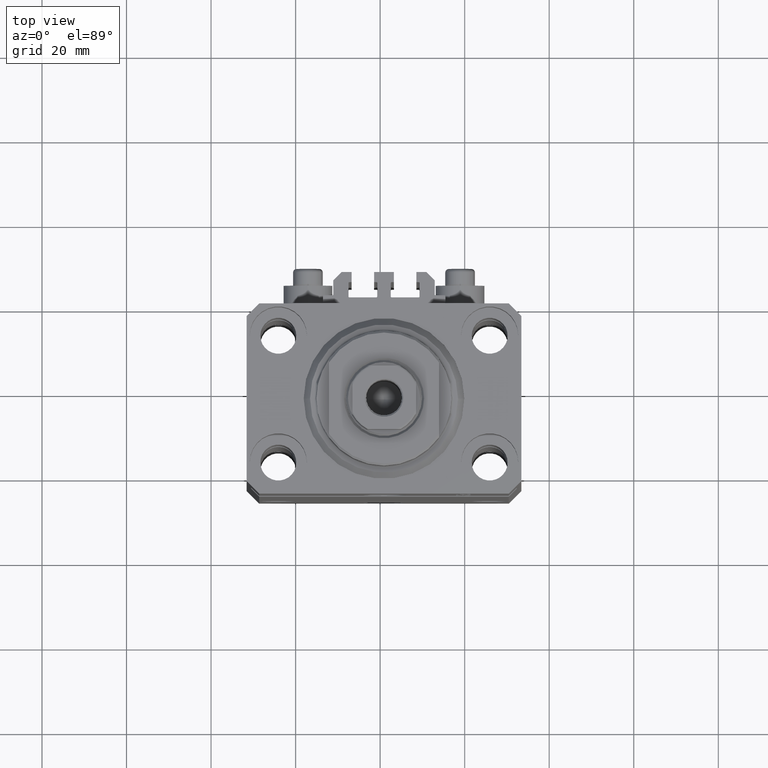
[diagram: clean part render]
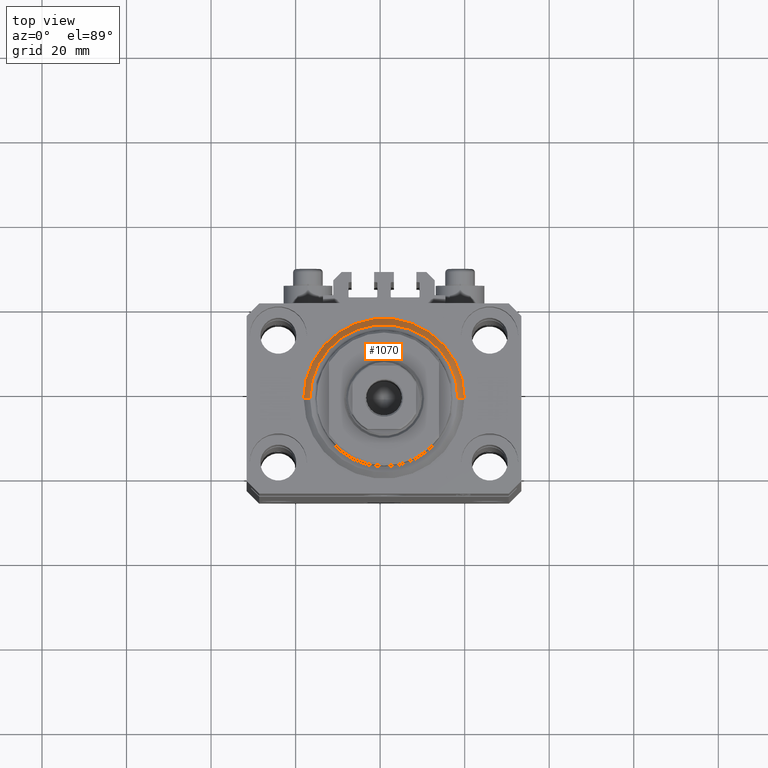
[diagram: same view with one face highlighted and labeled with its STEP entity id]
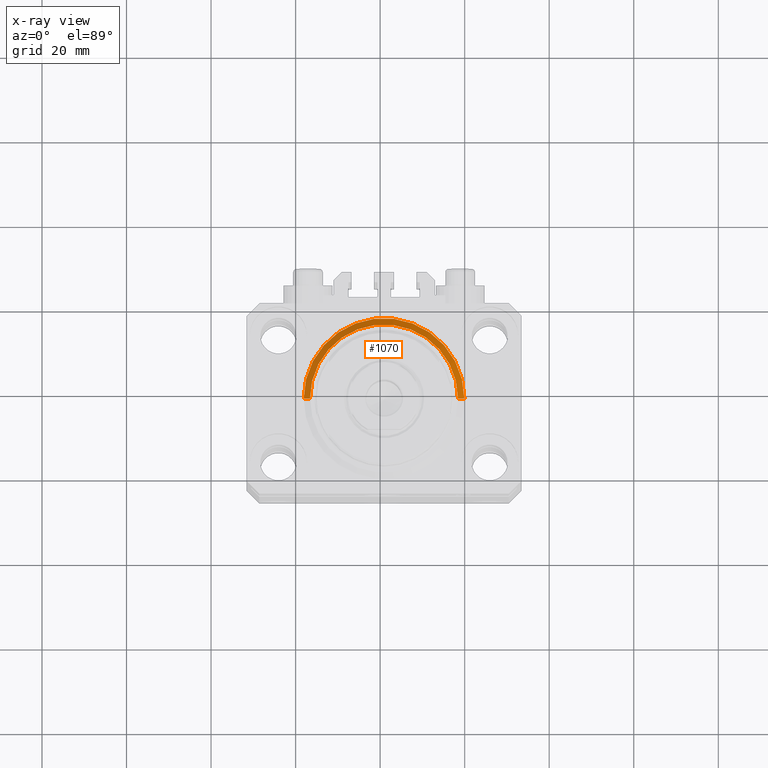
[diagram: x-ray of the same camera — body ghosted, the highlighted face saturated]
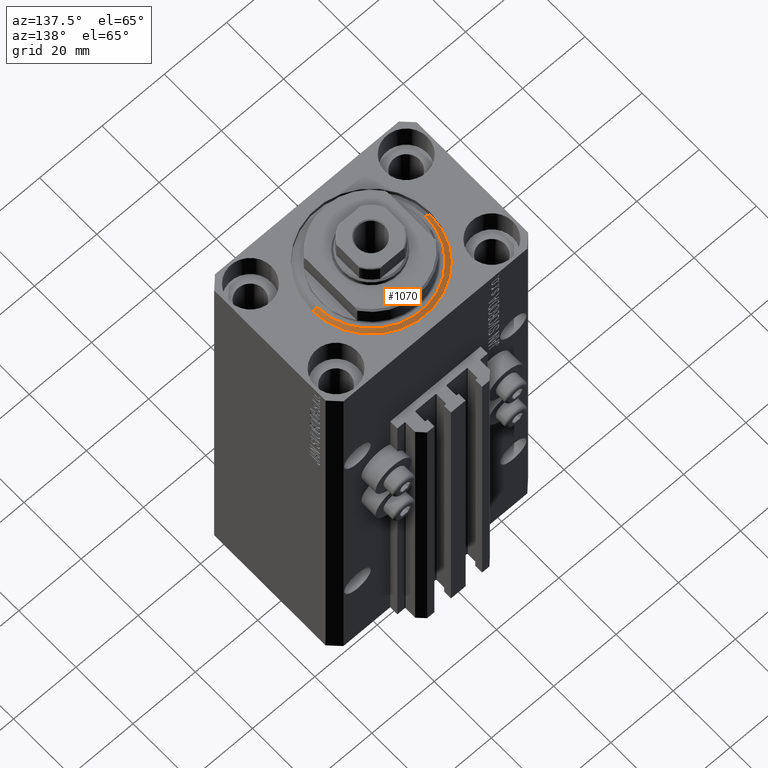
[diagram: same view with one face highlighted and labeled with its STEP entity id]
A machine part, top view. The second image highlights one B-rep face of the part: STEP entity #1070.
The next image is the same camera in x-ray: the body ghosted, the highlighted face saturated — about 0% of this face is hidden behind the body in this view.
A second angle (auxiliary view) of the same face is appended — the face is thin or edge-on in the first view.
In plain terms, the highlighted conical surface has half-angle 45 deg.
Its self-contained STEP definition (entity closure, byte-faithful):
#236 = CIRCLE ( 'NONE', #27960, 19.00000000000000000 ) ;
#541 = FACE_OUTER_BOUND ( 'NONE', #21568, .T. ) ;
#1070 = ADVANCED_FACE ( 'NONE', ( #541 ), #2206, .T. ) ;
#1375 = DIRECTION ( 'NONE',  ( -0.000000000000000000, -0.000000000000000000, 1.000000000000000000 ) ) ;
#2206 = CONICAL_SURFACE ( 'NONE', #46928, 19.00000000000000000, 0.7853981633974492782 ) ;
#2414 = CIRCLE ( 'NONE', #42497, 17.49999999999999289 ) ;
#5151 = DIRECTION ( 'NONE',  ( 0.7071067811865483499, 0.000000000000000000, 0.7071067811865467956 ) ) ;
#5686 = DIRECTION ( 'NONE',  ( -0.000000000000000000, -0.000000000000000000, -1.000000000000000000 ) ) ;
#7186 = CARTESIAN_POINT ( 'NONE',  ( -19.00000000000000000, 0.000000000000000000, 1.500000000000004885 ) ) ;
#9988 = EDGE_CURVE ( 'NONE', #36919, #35273, #2414, .T. ) ;
#14755 = CARTESIAN_POINT ( 'NONE',  ( 0.000000000000000000, 0.000000000000000000, 1.500000000000004885 ) ) ;
#15133 = ORIENTED_EDGE ( 'NONE', *, *, #43323, .F. ) ;
#15775 = LINE ( 'NONE', #26853, #20668 ) ;
#17829 = CARTESIAN_POINT ( 'NONE',  ( -19.00000000000000000, 2.326828918379970970E-15, 1.500000000000004885 ) ) ;
#19330 = EDGE_CURVE ( 'NONE', #36919, #23566, #36614, .T. ) ;
#20394 = DIRECTION ( 'NONE',  ( 1.000000000000000000, 0.000000000000000000, 0.000000000000000000 ) ) ;
#20668 = VECTOR ( 'NONE', #5151, 1000.000000000000000 ) ;
#21568 = EDGE_LOOP ( 'NONE', ( #23997, #39424, #15133, #47070 ) ) ;
#23249 = CARTESIAN_POINT ( 'NONE',  ( 19.00000000000000000, 2.326828918379970970E-15, 1.500000000000004885 ) ) ;
#23566 = VERTEX_POINT ( 'NONE', #7186 ) ;
#23997 = ORIENTED_EDGE ( 'NONE', *, *, #9988, .F. ) ;
#24024 = DIRECTION ( 'NONE',  ( 1.000000000000000000, 0.000000000000000000, 0.000000000000000000 ) ) ;
#26853 = CARTESIAN_POINT ( 'NONE',  ( 19.00000000000000000, 0.000000000000000000, 1.500000000000004885 ) ) ;
#27960 = AXIS2_PLACEMENT_3D ( 'NONE', #30566, #1375, #24024 ) ;
#28337 = CARTESIAN_POINT ( 'NONE',  ( 0.000000000000000000, 0.000000000000000000, 0.000000000000000000 ) ) ;
#29713 = DIRECTION ( 'NONE',  ( -0.000000000000000000, -0.000000000000000000, 1.000000000000000000 ) ) ;
#30196 = EDGE_CURVE ( 'NONE', #35273, #37050, #15775, .T. ) ;
#30566 = CARTESIAN_POINT ( 'NONE',  ( 0.000000000000000000, 0.000000000000000000, 1.500000000000004885 ) ) ;
#32763 = DIRECTION ( 'NONE',  ( -0.7071067811865483499, 8.659560562354943952E-17, 0.7071067811865467956 ) ) ;
#33340 = CARTESIAN_POINT ( 'NONE',  ( 17.49999999999999289, 0.000000000000000000, 0.000000000000000000 ) ) ;
#35273 = VERTEX_POINT ( 'NONE', #33340 ) ;
#36614 = LINE ( 'NONE', #17829, #47443 ) ;
#36919 = VERTEX_POINT ( 'NONE', #46426 ) ;
#37050 = VERTEX_POINT ( 'NONE', #23249 ) ;
#37673 = DIRECTION ( 'NONE',  ( 1.000000000000000000, 0.000000000000000000, 0.000000000000000000 ) ) ;
#39424 = ORIENTED_EDGE ( 'NONE', *, *, #19330, .T. ) ;
#42497 = AXIS2_PLACEMENT_3D ( 'NONE', #28337, #5686, #20394 ) ;
#43323 = EDGE_CURVE ( 'NONE', #37050, #23566, #236, .T. ) ;
#46426 = CARTESIAN_POINT ( 'NONE',  ( -17.49999999999999289, 2.234980408443919215E-15, 0.000000000000000000 ) ) ;
#46928 = AXIS2_PLACEMENT_3D ( 'NONE', #14755, #29713, #37673 ) ;
#47070 = ORIENTED_EDGE ( 'NONE', *, *, #30196, .F. ) ;
#47443 = VECTOR ( 'NONE', #32763, 1000.000000000000000 ) ;